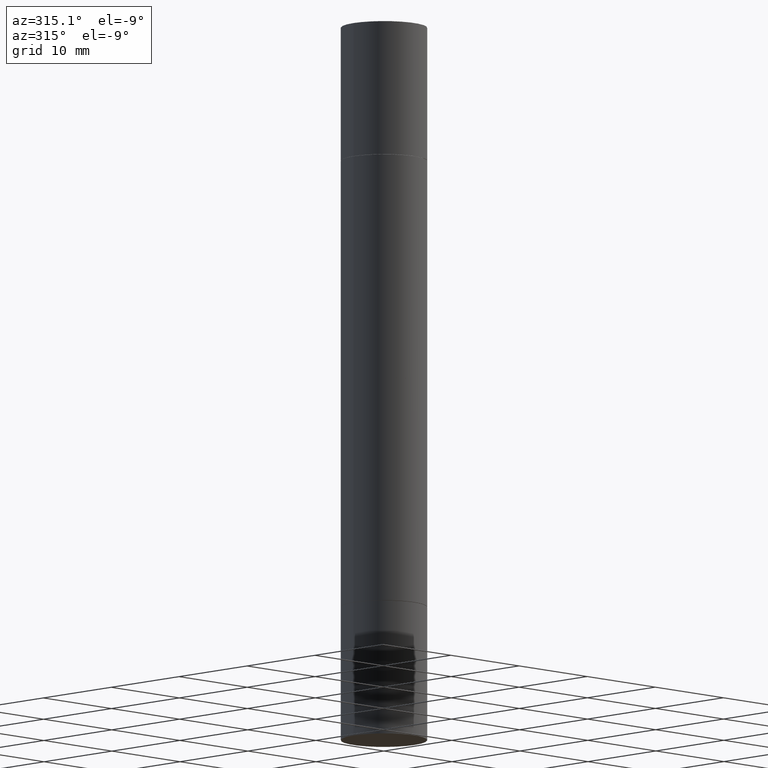
[diagram: clean part render]
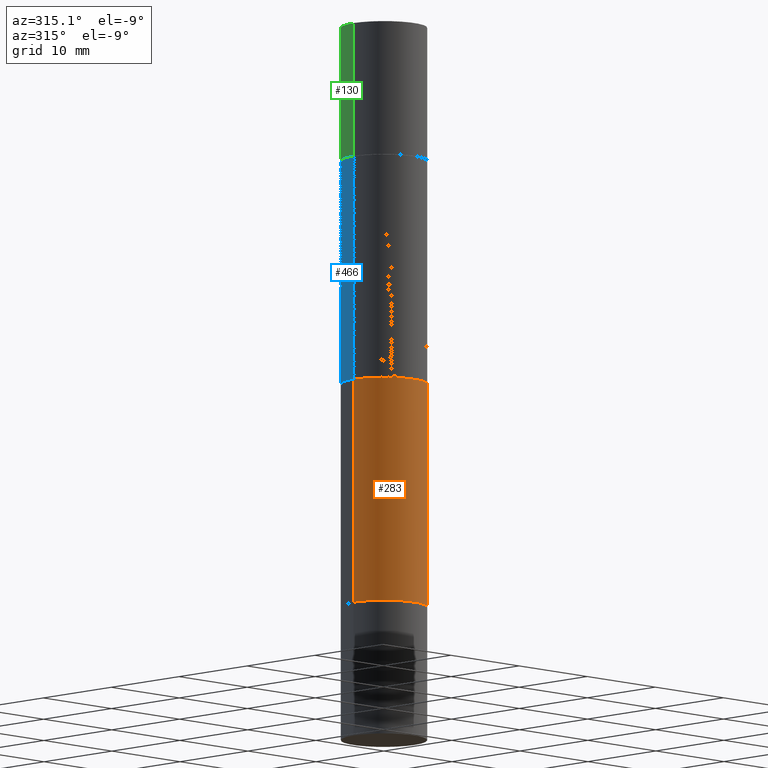
[diagram: same view with three faces highlighted in distinct colors, each labeled with its STEP entity id]
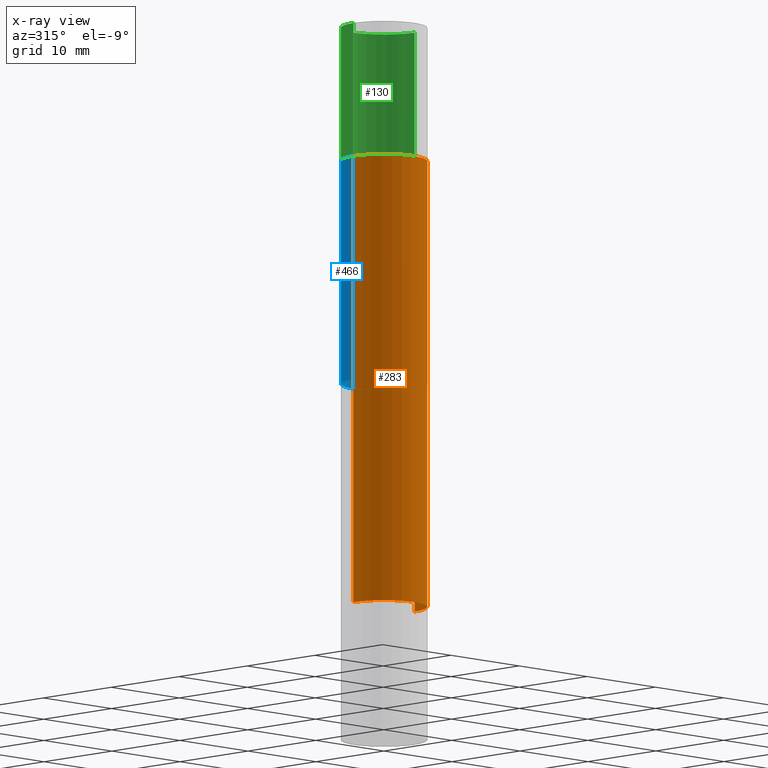
[diagram: x-ray of the same camera — body ghosted, the three highlighted faces saturated]
A machine part, auxiliary view with three faces highlighted in distinct colors.
The next image is the same camera in x-ray (body ghosted, the three faces saturated) — at least one of them is partly hidden behind the body in this view.
Their STEP definitions:

[orange] entity #283 — the highlighted cylindrical surface (partial cylindrical patch) has radius 4.4996 mm, axis along (-0, -0, -1).
#6 = CIRCLE ( 'NONE', #161, 0.1771500000000000019 ) ;
#17 = VECTOR ( 'NONE', #641, 39.37007874015748143 ) ;
#33 = CARTESIAN_POINT ( 'NONE',  ( 5.870592416128037625E-29, -1.926693730311889446E-15, -0.5521999999999996911 ) ) ;
#35 = DIRECTION ( 'NONE',  ( -2.445468806185136877E-29, -3.492890411551753071E-15, -1.000000000000000000 ) ) ;
#49 = DIRECTION ( 'NONE',  ( 1.000000000000000000, -6.982962677686266711E-15, 0.000000000000000000 ) ) ;
#88 = ORIENTED_EDGE ( 'NONE', *, *, #142, .F. ) ;
#114 = CARTESIAN_POINT ( 'NONE',  ( 0.1771500000000000019, -9.618681940378976650E-15, -2.400599999999999401 ) ) ;
#142 = EDGE_CURVE ( 'NONE', #672, #322, #6, .T. ) ;
#161 = AXIS2_PLACEMENT_3D ( 'NONE', #33, #615, #49 ) ;
#204 = VERTEX_POINT ( 'NONE', #567 ) ;
#208 = CARTESIAN_POINT ( 'NONE',  ( -0.1771500000000000019, -7.113565100066610661E-16, -0.5521999999999996911 ) ) ;
#222 = DIRECTION ( 'NONE',  ( 1.000000000000000000, -6.982962677686268288E-15, 0.000000000000000000 ) ) ;
#252 = FACE_OUTER_BOUND ( 'NONE', #676, .T. ) ;
#269 = CYLINDRICAL_SURFACE ( 'NONE', #673, 0.1771499999999998354 ) ;
#283 = ADVANCED_FACE ( 'NONE', ( #252 ), #269, .T. ) ;
#291 = EDGE_CURVE ( 'NONE', #672, #204, #428, .T. ) ;
#295 = ORIENTED_EDGE ( 'NONE', *, *, #468, .T. ) ;
#322 = VERTEX_POINT ( 'NONE', #416 ) ;
#332 = ORIENTED_EDGE ( 'NONE', *, *, #291, .T. ) ;
#370 = VERTEX_POINT ( 'NONE', #114 ) ;
#372 = CARTESIAN_POINT ( 'NONE',  ( -0.1771499999999998354, -9.096389231977799348E-15, -2.952799999999998981 ) ) ;
#402 = DIRECTION ( 'NONE',  ( -2.445468806185136597E-29, 3.491481338843145583E-15, 1.000000000000000000 ) ) ;
#416 = CARTESIAN_POINT ( 'NONE',  ( 0.1771500000000000019, -3.163725568664010262E-15, -0.5521999999999996911 ) ) ;
#428 = LINE ( 'NONE', #372, #17 ) ;
#432 = AXIS2_PLACEMENT_3D ( 'NONE', #435, #402, #482 ) ;
#435 = CARTESIAN_POINT ( 'NONE',  ( 5.870592416128037625E-29, -8.381650102026854256E-15, -2.400599999999999401 ) ) ;
#451 = ORIENTED_EDGE ( 'NONE', *, *, #513, .F. ) ;
#452 = CIRCLE ( 'NONE', #432, 0.1771500000000000019 ) ;
#468 = EDGE_CURVE ( 'NONE', #204, #370, #452, .T. ) ;
#482 = DIRECTION ( 'NONE',  ( 1.000000000000000000, -6.982962677686266711E-15, 0.000000000000000000 ) ) ;
#513 = EDGE_CURVE ( 'NONE', #322, #370, #649, .T. ) ;
#525 = DIRECTION ( 'NONE',  ( -2.445468806185136597E-29, -3.492890411551752677E-15, -1.000000000000000000 ) ) ;
#567 = CARTESIAN_POINT ( 'NONE',  ( -0.1771500000000000019, -3.939485828362789011E-15, -2.400599999999999401 ) ) ;
#615 = DIRECTION ( 'NONE',  ( 2.445468806185136597E-29, 3.492890411551752677E-15, 1.000000000000000000 ) ) ;
#636 = CARTESIAN_POINT ( 'NONE',  ( 0.000000000000000000, -1.031172645228302408E-14, -2.952799999999998981 ) ) ;
#641 = DIRECTION ( 'NONE',  ( -2.445468806185136877E-29, -3.492890411551753071E-15, -1.000000000000000000 ) ) ;
#645 = VECTOR ( 'NONE', #35, 39.37007874015748143 ) ;
#649 = LINE ( 'NONE', #661, #645 ) ;
#661 = CARTESIAN_POINT ( 'NONE',  ( 0.1771499999999998354, -1.154875829063514490E-14, -2.952799999999998981 ) ) ;
#672 = VERTEX_POINT ( 'NONE', #208 ) ;
#673 = AXIS2_PLACEMENT_3D ( 'NONE', #636, #525, #222 ) ;
#676 = EDGE_LOOP ( 'NONE', ( #88, #332, #295, #451 ) ) ;

[blue] entity #466 — the highlighted cylindrical surface (partial cylindrical patch) has radius 4.4996 mm, axis along (-0, -0, -1).
#4 = ORIENTED_EDGE ( 'NONE', *, *, #512, .F. ) ;
#13 = CYLINDRICAL_SURFACE ( 'NONE', #530, 0.1771499999999998354 ) ;
#16 = AXIS2_PLACEMENT_3D ( 'NONE', #539, #650, #73 ) ;
#18 = DIRECTION ( 'NONE',  ( -2.445468806185136877E-29, -3.492890411551753071E-15, -1.000000000000000000 ) ) ;
#22 = EDGE_CURVE ( 'NONE', #220, #522, #620, .T. ) ;
#26 = EDGE_LOOP ( 'NONE', ( #4, #266, #515, #158 ) ) ;
#28 = CARTESIAN_POINT ( 'NONE',  ( 0.000000000000000000, -1.031172645228302408E-14, -2.952799999999998981 ) ) ;
#32 = LINE ( 'NONE', #144, #251 ) ;
#73 = DIRECTION ( 'NONE',  ( 1.000000000000000000, -6.982962677686266711E-15, 0.000000000000000000 ) ) ;
#144 = CARTESIAN_POINT ( 'NONE',  ( -0.1771499999999998354, -9.096389231977799348E-15, -2.952799999999998981 ) ) ;
#153 = EDGE_CURVE ( 'NONE', #220, #354, #460, .T. ) ;
#158 = ORIENTED_EDGE ( 'NONE', *, *, #619, .F. ) ;
#200 = CARTESIAN_POINT ( 'NONE',  ( 3.610490145451734531E-29, -5.154823048668018475E-15, -1.476399999999999491 ) ) ;
#220 = VERTEX_POINT ( 'NONE', #242 ) ;
#242 = CARTESIAN_POINT ( 'NONE',  ( 0.1771500000000000019, -3.163725568664010262E-15, -0.5521999999999996911 ) ) ;
#251 = VECTOR ( 'NONE', #18, 39.37007874015748143 ) ;
#264 = VECTOR ( 'NONE', #505, 39.37007874015748143 ) ;
#266 = ORIENTED_EDGE ( 'NONE', *, *, #22, .F. ) ;
#334 = CIRCLE ( 'NONE', #590, 0.1771499999999998354 ) ;
#354 = VERTEX_POINT ( 'NONE', #639 ) ;
#363 = CARTESIAN_POINT ( 'NONE',  ( 0.1771499999999998354, -1.154875829063514490E-14, -2.952799999999998981 ) ) ;
#381 = VERTEX_POINT ( 'NONE', #517 ) ;
#387 = CARTESIAN_POINT ( 'NONE',  ( -0.1771500000000000019, -7.113565100066610661E-16, -0.5521999999999996911 ) ) ;
#408 = DIRECTION ( 'NONE',  ( 0.000000000000000000, 1.000000000000000000, -3.084220145260249380E-15 ) ) ;
#431 = FACE_OUTER_BOUND ( 'NONE', #26, .T. ) ;
#449 = DIRECTION ( 'NONE',  ( 1.000000000000000000, -6.982962677686268288E-15, 0.000000000000000000 ) ) ;
#460 = LINE ( 'NONE', #363, #264 ) ;
#466 = ADVANCED_FACE ( 'NONE', ( #431 ), #13, .T. ) ;
#504 = DIRECTION ( 'NONE',  ( -2.445468806185136597E-29, -3.492890411551752677E-15, -1.000000000000000000 ) ) ;
#505 = DIRECTION ( 'NONE',  ( -2.445468806185136877E-29, -3.492890411551753071E-15, -1.000000000000000000 ) ) ;
#512 = EDGE_CURVE ( 'NONE', #522, #381, #32, .T. ) ;
#515 = ORIENTED_EDGE ( 'NONE', *, *, #153, .T. ) ;
#517 = CARTESIAN_POINT ( 'NONE',  ( -0.1771499999999998354, -2.325421169184726863E-15, -1.476399999999999491 ) ) ;
#522 = VERTEX_POINT ( 'NONE', #387 ) ;
#530 = AXIS2_PLACEMENT_3D ( 'NONE', #28, #504, #449 ) ;
#539 = CARTESIAN_POINT ( 'NONE',  ( 5.870592416128037625E-29, -1.926693730311889446E-15, -0.5521999999999996911 ) ) ;
#590 = AXIS2_PLACEMENT_3D ( 'NONE', #200, #617, #408 ) ;
#617 = DIRECTION ( 'NONE',  ( -0.000000000000000000, -3.492185875197449130E-15, -1.000000000000000000 ) ) ;
#619 = EDGE_CURVE ( 'NONE', #381, #354, #334, .T. ) ;
#620 = CIRCLE ( 'NONE', #16, 0.1771500000000000019 ) ;
#639 = CARTESIAN_POINT ( 'NONE',  ( 0.1771499999999998354, -4.777790227842073988E-15, -1.476399999999999491 ) ) ;
#650 = DIRECTION ( 'NONE',  ( 2.445468806185136597E-29, 3.492890411551752677E-15, 1.000000000000000000 ) ) ;

[green] entity #130 — the highlighted cylindrical surface (partial cylindrical patch) has radius 4.4996 mm, axis along (-0, -0, -1).
#19 = VERTEX_POINT ( 'NONE', #603 ) ;
#58 = ORIENTED_EDGE ( 'NONE', *, *, #192, .T. ) ;
#66 = CARTESIAN_POINT ( 'NONE',  ( 5.873037884934223228E-29, -1.923200839900336120E-15, -0.5511999999999995792 ) ) ;
#68 = EDGE_CURVE ( 'NONE', #19, #70, #543, .T. ) ;
#70 = VERTEX_POINT ( 'NONE', #341 ) ;
#90 = CARTESIAN_POINT ( 'NONE',  ( 0.000000000000000000, -1.031172645228302408E-14, -2.952799999999998981 ) ) ;
#104 = LINE ( 'NONE', #447, #494 ) ;
#108 = AXIS2_PLACEMENT_3D ( 'NONE', #90, #457, #606 ) ;
#116 = VERTEX_POINT ( 'NONE', #350 ) ;
#118 = DIRECTION ( 'NONE',  ( 1.000000000000000000, -6.982962677686266711E-15, 0.000000000000000000 ) ) ;
#130 = ADVANCED_FACE ( 'NONE', ( #413 ), #668, .T. ) ;
#136 = DIRECTION ( 'NONE',  ( -2.445468806185136877E-29, -3.492890411551753071E-15, -1.000000000000000000 ) ) ;
#139 = DIRECTION ( 'NONE',  ( -2.445468806185136877E-29, -3.492890411551753071E-15, -1.000000000000000000 ) ) ;
#148 = CIRCLE ( 'NONE', #550, 0.1771500000000000019 ) ;
#168 = EDGE_LOOP ( 'NONE', ( #461, #506, #58, #621 ) ) ;
#192 = EDGE_CURVE ( 'NONE', #404, #116, #104, .T. ) ;
#259 = DIRECTION ( 'NONE',  ( 1.000000000000000000, -6.982962677686266711E-15, 0.000000000000000000 ) ) ;
#265 = VECTOR ( 'NONE', #136, 39.37007874015748143 ) ;
#267 = CIRCLE ( 'NONE', #442, 0.1771500000000000019 ) ;
#312 = EDGE_CURVE ( 'NONE', #404, #19, #267, .T. ) ;
#341 = CARTESIAN_POINT ( 'NONE',  ( -0.1771500000000000019, 2.547769778285537851E-16, -0.5511999999999995792 ) ) ;
#350 = CARTESIAN_POINT ( 'NONE',  ( 0.1771500000000000019, -3.160232678252458120E-15, -0.5511999999999995792 ) ) ;
#365 = DIRECTION ( 'NONE',  ( 2.445468806185136597E-29, 3.492890411551752677E-15, 1.000000000000000000 ) ) ;
#369 = DIRECTION ( 'NONE',  ( 2.445468806185136597E-29, 3.492890411551752677E-15, 1.000000000000000000 ) ) ;
#394 = CARTESIAN_POINT ( 'NONE',  ( -0.1771500000000000019, -9.096389231977797770E-15, -2.952799999999998981 ) ) ;
#404 = VERTEX_POINT ( 'NONE', #678 ) ;
#413 = FACE_OUTER_BOUND ( 'NONE', #168, .T. ) ;
#437 = EDGE_CURVE ( 'NONE', #116, #70, #148, .T. ) ;
#442 = AXIS2_PLACEMENT_3D ( 'NONE', #675, #365, #259 ) ;
#447 = CARTESIAN_POINT ( 'NONE',  ( 0.1771500000000000019, -1.154875829063514805E-14, -2.952799999999998981 ) ) ;
#457 = DIRECTION ( 'NONE',  ( -2.445468806185136597E-29, -3.492890411551752677E-15, -1.000000000000000000 ) ) ;
#461 = ORIENTED_EDGE ( 'NONE', *, *, #68, .F. ) ;
#494 = VECTOR ( 'NONE', #139, 39.37007874015748143 ) ;
#506 = ORIENTED_EDGE ( 'NONE', *, *, #312, .F. ) ;
#543 = LINE ( 'NONE', #394, #265 ) ;
#550 = AXIS2_PLACEMENT_3D ( 'NONE', #66, #369, #118 ) ;
#603 = CARTESIAN_POINT ( 'NONE',  ( -0.1771500000000000019, 2.547769778285537851E-16, 5.463695987328559963E-16 ) ) ;
#606 = DIRECTION ( 'NONE',  ( 1.000000000000000000, -6.982962677686272233E-15, 0.000000000000000000 ) ) ;
#621 = ORIENTED_EDGE ( 'NONE', *, *, #437, .T. ) ;
#668 = CYLINDRICAL_SURFACE ( 'NONE', #108, 0.1771500000000000019 ) ;
#675 = CARTESIAN_POINT ( 'NONE',  ( 7.220980290903470182E-29, 2.080354946989631982E-18, 5.463695987328526437E-16 ) ) ;
#678 = CARTESIAN_POINT ( 'NONE',  ( 0.1771500000000000019, -1.234951483405132701E-15, 5.463695987328526437E-16 ) ) ;